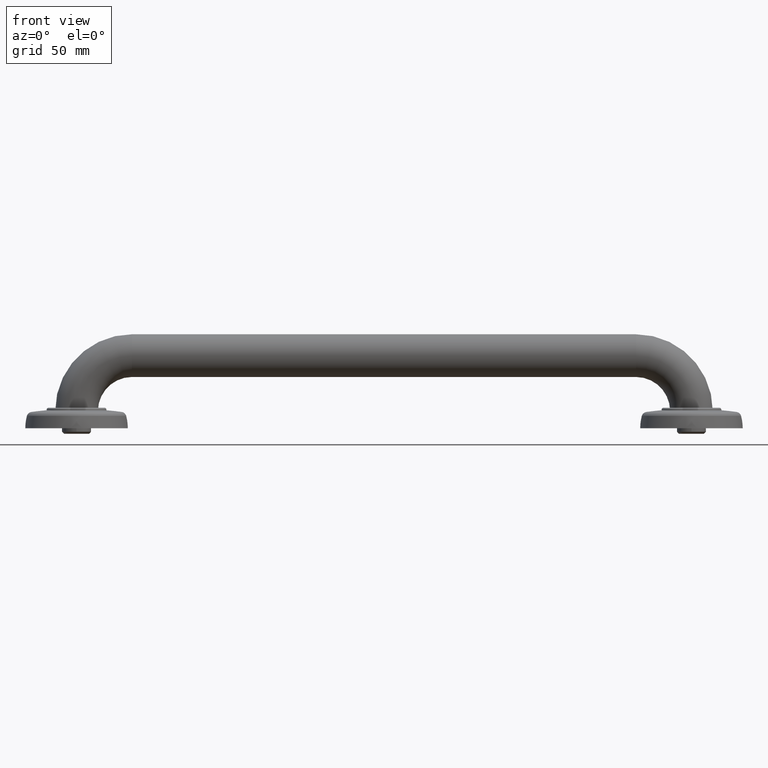
[diagram: clean part render]
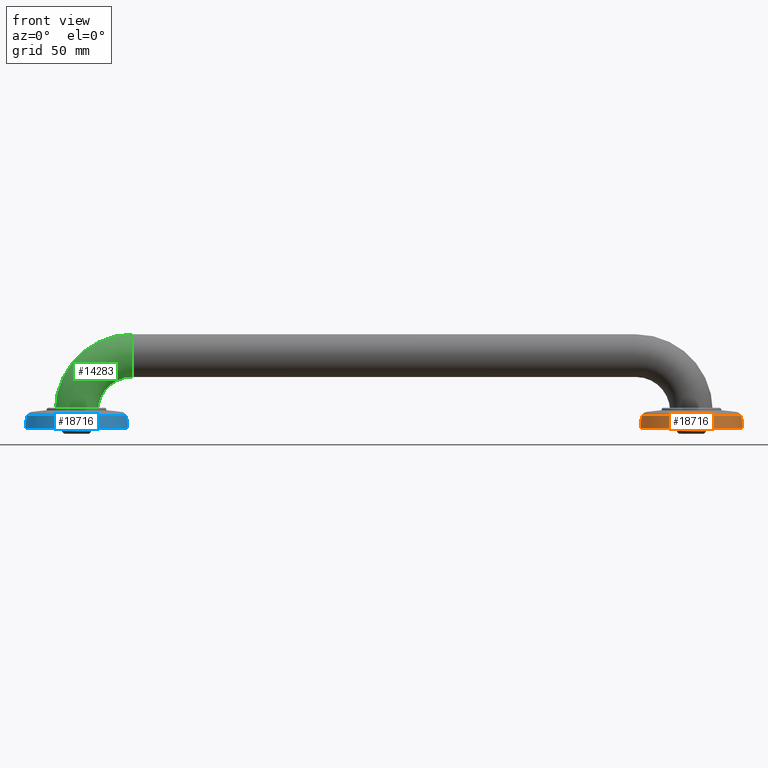
[diagram: same view with three faces highlighted in distinct colors, each labeled with its STEP entity id]
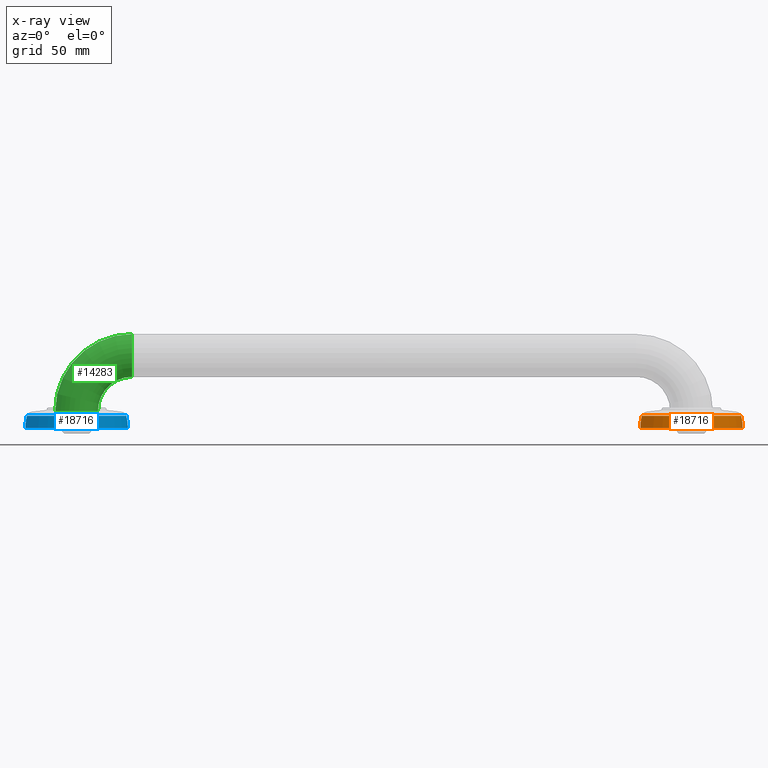
[diagram: x-ray of the same camera — body ghosted, the three highlighted faces saturated]
A machine part, front view with three faces highlighted in distinct colors.
The next image is the same camera in x-ray (body ghosted, the three faces saturated) — at least one of them is partly hidden behind the body in this view.
Their STEP definitions:

[orange] entity #18716 — the highlighted face is a freeform B-spline surface patch.
#17330=CARTESIAN_POINT('',(-8.3E-2,0.E0,0.E0));
#17331=DIRECTION('',(0.E0,0.E0,-1.E0));
#17332=DIRECTION('',(-1.E0,0.E0,0.E0));
#17333=AXIS2_PLACEMENT_3D('',#17330,#17331,#17332);
#17340=CARTESIAN_POINT('',(8.3E-2,0.E0,0.E0));
#17341=DIRECTION('',(0.E0,0.E0,1.E0));
#17342=DIRECTION('',(1.E0,0.E0,0.E0));
#17343=AXIS2_PLACEMENT_3D('',#17340,#17341,#17342);
#17385=CARTESIAN_POINT('',(0.E0,3.591472293824E-1,0.E0));
#17386=DIRECTION('',(0.E0,1.E0,0.E0));
#17387=DIRECTION('',(-1.E0,0.E0,0.E0));
#17388=AXIS2_PLACEMENT_3D('',#17385,#17386,#17387);
#17390=CARTESIAN_POINT('',(0.E0,0.E0,0.E0));
#17391=DIRECTION('',(0.E0,-1.E0,0.E0));
#17392=DIRECTION('',(1.E0,0.E0,0.E0));
#17393=AXIS2_PLACEMENT_3D('',#17390,#17391,#17392);
#18353=CARTESIAN_POINT('',(1.5E0,0.E0,0.E0));
#18354=CARTESIAN_POINT('',(-1.5E0,0.E0,0.E0));
#18355=VERTEX_POINT('',#18353);
#18356=VERTEX_POINT('',#18354);
#18369=CARTESIAN_POINT('',(-1.453730559821E0,3.591472293824E-1,0.E0));
#18370=CARTESIAN_POINT('',(1.453730559821E0,3.591472293824E-1,0.E0));
#18371=VERTEX_POINT('',#18369);
#18372=VERTEX_POINT('',#18370);
#18681=CARTESIAN_POINT('',(1.449006983134E0,3.661675363298E-1,
-9.116379219209E-2));
#18682=CARTESIAN_POINT('',(1.481567288477E0,2.442042063188E-1,
-9.321231296840E-2));
#18683=CARTESIAN_POINT('',(1.497667282328E0,1.189876420465E-1,
-9.422523872432E-2));
#18684=CARTESIAN_POINT('',(1.497021520017E0,-7.262130742064E-3,
-9.418461080341E-2));
#18685=CARTESIAN_POINT('',(1.505109052973E0,3.661675363298E-1,
8.005530727029E-1));
#18686=CARTESIAN_POINT('',(1.538930015128E0,2.442042063188E-1,
8.185421181621E-1));
#18687=CARTESIAN_POINT('',(1.555653362069E0,1.189876420465E-1,
8.274371060385E-1));
#18688=CARTESIAN_POINT('',(1.554982597392E0,-7.262130742064E-3,
8.270803327392E-1));
#18689=CARTESIAN_POINT('',(8.934799434674E-1,3.661675363298E-1,
1.451871920721E0));
#18690=CARTESIAN_POINT('',(9.135571274392E-1,2.442042063188E-1,
1.484496603423E0));
#18691=CARTESIAN_POINT('',(9.234846307316E-1,1.189876420465E-1,
1.500628429748E0));
#18692=CARTESIAN_POINT('',(9.230864437804E-1,-7.262130742064E-3,
1.499981390653E0));
#18693=CARTESIAN_POINT('',(0.E0,3.661675363298E-1,1.451871920721E0));
#18694=CARTESIAN_POINT('',(0.E0,2.442042063188E-1,1.484496603423E0));
#18695=CARTESIAN_POINT('',(0.E0,1.189876420465E-1,1.500628429748E0));
#18696=CARTESIAN_POINT('',(0.E0,-7.262130742064E-3,1.499981390653E0));
#18697=CARTESIAN_POINT('',(-8.934799434674E-1,3.661675363298E-1,
1.451871920721E0));
#18698=CARTESIAN_POINT('',(-9.135571274392E-1,2.442042063188E-1,
1.484496603423E0));
#18699=CARTESIAN_POINT('',(-9.234846307316E-1,1.189876420465E-1,
1.500628429748E0));
#18700=CARTESIAN_POINT('',(-9.230864437804E-1,-7.262130742064E-3,
1.499981390653E0));
#18701=CARTESIAN_POINT('',(-1.505109052973E0,3.661675363298E-1,
8.005530727029E-1));
#18702=CARTESIAN_POINT('',(-1.538930015128E0,2.442042063188E-1,
8.185421181621E-1));
#18703=CARTESIAN_POINT('',(-1.555653362069E0,1.189876420465E-1,
8.274371060385E-1));
#18704=CARTESIAN_POINT('',(-1.554982597392E0,-7.262130742064E-3,
8.270803327392E-1));
#18705=CARTESIAN_POINT('',(-1.449006983134E0,3.661675363298E-1,
-9.116379219209E-2));
#18706=CARTESIAN_POINT('',(-1.481567288477E0,2.442042063188E-1,
-9.321231296840E-2));
#18707=CARTESIAN_POINT('',(-1.497667282328E0,1.189876420465E-1,
-9.422523872432E-2));
#18708=CARTESIAN_POINT('',(-1.497021520017E0,-7.262130742064E-3,
-9.418461080341E-2));
#18709=(BOUNDED_SURFACE()B_SPLINE_SURFACE(3,3,((#18681,#18682,#18683,#18684),(
#18685,#18686,#18687,#18688),(#18689,#18690,#18691,#18692),(#18693,#18694,
#18695,#18696),(#18697,#18698,#18699,#18700),(#18701,#18702,#18703,#18704),(
#18705,#18706,#18707,#18708)),.UNSPECIFIED.,.F.,.F.,.F.)B_SPLINE_SURFACE_WITH_KNOTS((4,3,4),(4,4),(0.E0,1.E0,2.E0),(0.E0,1.E0),.UNSPECIFIED.)GEOMETRIC_REPRESENTATION_ITEM()RATIONAL_B_SPLINE_SURFACE(((1.192548551712E0,1.185500792755E0,
1.185500792755E0,1.192548551712E0),(9.417532904063E-1,9.361876887561E-1,
9.361876887561E-1,9.417532904063E-1),(9.417532904063E-1,9.361876887561E-1,
9.361876887561E-1,9.417532904063E-1),(1.192548551712E0,1.185500792755E0,
1.185500792755E0,1.192548551712E0),(9.417532904063E-1,9.361876887561E-1,
9.361876887561E-1,9.417532904063E-1),(9.417532904063E-1,9.361876887561E-1,
9.361876887561E-1,9.417532904063E-1),(1.192548551712E0,1.185500792755E0,
1.185500792755E0,1.192548551712E0)))REPRESENTATION_ITEM('')SURFACE());
#18710=ORIENTED_EDGE('',*,*,#18675,.T.);
#18711=ORIENTED_EDGE('',*,*,#18619,.F.);
#18712=ORIENTED_EDGE('',*,*,#18574,.T.);
#18713=ORIENTED_EDGE('',*,*,#18616,.T.);
#18714=EDGE_LOOP('',(#18710,#18711,#18712,#18713));
#18715=FACE_OUTER_BOUND('',#18714,.F.);
#18716=ADVANCED_FACE('',(#18715),#18709,.T.);
#17334=CIRCLE('',#17333,1.417E0);
#17344=CIRCLE('',#17343,1.417E0);
#17389=CIRCLE('',#17388,1.453730559821E0);
#17394=CIRCLE('',#17393,1.5E0);
#18574=EDGE_CURVE('',#18355,#18356,#17394,.T.);
#18616=EDGE_CURVE('',#18356,#18371,#17334,.T.);
#18619=EDGE_CURVE('',#18355,#18372,#17344,.T.);
#18675=EDGE_CURVE('',#18371,#18372,#17389,.T.);

[blue] entity #18716 — the highlighted face is a freeform B-spline surface patch.
#17330=CARTESIAN_POINT('',(-8.3E-2,0.E0,0.E0));
#17331=DIRECTION('',(0.E0,0.E0,-1.E0));
#17332=DIRECTION('',(-1.E0,0.E0,0.E0));
#17333=AXIS2_PLACEMENT_3D('',#17330,#17331,#17332);
#17340=CARTESIAN_POINT('',(8.3E-2,0.E0,0.E0));
#17341=DIRECTION('',(0.E0,0.E0,1.E0));
#17342=DIRECTION('',(1.E0,0.E0,0.E0));
#17343=AXIS2_PLACEMENT_3D('',#17340,#17341,#17342);
#17385=CARTESIAN_POINT('',(0.E0,3.591472293824E-1,0.E0));
#17386=DIRECTION('',(0.E0,1.E0,0.E0));
#17387=DIRECTION('',(-1.E0,0.E0,0.E0));
#17388=AXIS2_PLACEMENT_3D('',#17385,#17386,#17387);
#17390=CARTESIAN_POINT('',(0.E0,0.E0,0.E0));
#17391=DIRECTION('',(0.E0,-1.E0,0.E0));
#17392=DIRECTION('',(1.E0,0.E0,0.E0));
#17393=AXIS2_PLACEMENT_3D('',#17390,#17391,#17392);
#18353=CARTESIAN_POINT('',(1.5E0,0.E0,0.E0));
#18354=CARTESIAN_POINT('',(-1.5E0,0.E0,0.E0));
#18355=VERTEX_POINT('',#18353);
#18356=VERTEX_POINT('',#18354);
#18369=CARTESIAN_POINT('',(-1.453730559821E0,3.591472293824E-1,0.E0));
#18370=CARTESIAN_POINT('',(1.453730559821E0,3.591472293824E-1,0.E0));
#18371=VERTEX_POINT('',#18369);
#18372=VERTEX_POINT('',#18370);
#18681=CARTESIAN_POINT('',(1.449006983134E0,3.661675363298E-1,
-9.116379219209E-2));
#18682=CARTESIAN_POINT('',(1.481567288477E0,2.442042063188E-1,
-9.321231296840E-2));
#18683=CARTESIAN_POINT('',(1.497667282328E0,1.189876420465E-1,
-9.422523872432E-2));
#18684=CARTESIAN_POINT('',(1.497021520017E0,-7.262130742064E-3,
-9.418461080341E-2));
#18685=CARTESIAN_POINT('',(1.505109052973E0,3.661675363298E-1,
8.005530727029E-1));
#18686=CARTESIAN_POINT('',(1.538930015128E0,2.442042063188E-1,
8.185421181621E-1));
#18687=CARTESIAN_POINT('',(1.555653362069E0,1.189876420465E-1,
8.274371060385E-1));
#18688=CARTESIAN_POINT('',(1.554982597392E0,-7.262130742064E-3,
8.270803327392E-1));
#18689=CARTESIAN_POINT('',(8.934799434674E-1,3.661675363298E-1,
1.451871920721E0));
#18690=CARTESIAN_POINT('',(9.135571274392E-1,2.442042063188E-1,
1.484496603423E0));
#18691=CARTESIAN_POINT('',(9.234846307316E-1,1.189876420465E-1,
1.500628429748E0));
#18692=CARTESIAN_POINT('',(9.230864437804E-1,-7.262130742064E-3,
1.499981390653E0));
#18693=CARTESIAN_POINT('',(0.E0,3.661675363298E-1,1.451871920721E0));
#18694=CARTESIAN_POINT('',(0.E0,2.442042063188E-1,1.484496603423E0));
#18695=CARTESIAN_POINT('',(0.E0,1.189876420465E-1,1.500628429748E0));
#18696=CARTESIAN_POINT('',(0.E0,-7.262130742064E-3,1.499981390653E0));
#18697=CARTESIAN_POINT('',(-8.934799434674E-1,3.661675363298E-1,
1.451871920721E0));
#18698=CARTESIAN_POINT('',(-9.135571274392E-1,2.442042063188E-1,
1.484496603423E0));
#18699=CARTESIAN_POINT('',(-9.234846307316E-1,1.189876420465E-1,
1.500628429748E0));
#18700=CARTESIAN_POINT('',(-9.230864437804E-1,-7.262130742064E-3,
1.499981390653E0));
#18701=CARTESIAN_POINT('',(-1.505109052973E0,3.661675363298E-1,
8.005530727029E-1));
#18702=CARTESIAN_POINT('',(-1.538930015128E0,2.442042063188E-1,
8.185421181621E-1));
#18703=CARTESIAN_POINT('',(-1.555653362069E0,1.189876420465E-1,
8.274371060385E-1));
#18704=CARTESIAN_POINT('',(-1.554982597392E0,-7.262130742064E-3,
8.270803327392E-1));
#18705=CARTESIAN_POINT('',(-1.449006983134E0,3.661675363298E-1,
-9.116379219209E-2));
#18706=CARTESIAN_POINT('',(-1.481567288477E0,2.442042063188E-1,
-9.321231296840E-2));
#18707=CARTESIAN_POINT('',(-1.497667282328E0,1.189876420465E-1,
-9.422523872432E-2));
#18708=CARTESIAN_POINT('',(-1.497021520017E0,-7.262130742064E-3,
-9.418461080341E-2));
#18709=(BOUNDED_SURFACE()B_SPLINE_SURFACE(3,3,((#18681,#18682,#18683,#18684),(
#18685,#18686,#18687,#18688),(#18689,#18690,#18691,#18692),(#18693,#18694,
#18695,#18696),(#18697,#18698,#18699,#18700),(#18701,#18702,#18703,#18704),(
#18705,#18706,#18707,#18708)),.UNSPECIFIED.,.F.,.F.,.F.)B_SPLINE_SURFACE_WITH_KNOTS((4,3,4),(4,4),(0.E0,1.E0,2.E0),(0.E0,1.E0),.UNSPECIFIED.)GEOMETRIC_REPRESENTATION_ITEM()RATIONAL_B_SPLINE_SURFACE(((1.192548551712E0,1.185500792755E0,
1.185500792755E0,1.192548551712E0),(9.417532904063E-1,9.361876887561E-1,
9.361876887561E-1,9.417532904063E-1),(9.417532904063E-1,9.361876887561E-1,
9.361876887561E-1,9.417532904063E-1),(1.192548551712E0,1.185500792755E0,
1.185500792755E0,1.192548551712E0),(9.417532904063E-1,9.361876887561E-1,
9.361876887561E-1,9.417532904063E-1),(9.417532904063E-1,9.361876887561E-1,
9.361876887561E-1,9.417532904063E-1),(1.192548551712E0,1.185500792755E0,
1.185500792755E0,1.192548551712E0)))REPRESENTATION_ITEM('')SURFACE());
#18710=ORIENTED_EDGE('',*,*,#18675,.T.);
#18711=ORIENTED_EDGE('',*,*,#18619,.F.);
#18712=ORIENTED_EDGE('',*,*,#18574,.T.);
#18713=ORIENTED_EDGE('',*,*,#18616,.T.);
#18714=EDGE_LOOP('',(#18710,#18711,#18712,#18713));
#18715=FACE_OUTER_BOUND('',#18714,.F.);
#18716=ADVANCED_FACE('',(#18715),#18709,.T.);
#17334=CIRCLE('',#17333,1.417E0);
#17344=CIRCLE('',#17343,1.417E0);
#17389=CIRCLE('',#17388,1.453730559821E0);
#17394=CIRCLE('',#17393,1.5E0);
#18574=EDGE_CURVE('',#18355,#18356,#17394,.T.);
#18616=EDGE_CURVE('',#18356,#18371,#17334,.T.);
#18619=EDGE_CURVE('',#18355,#18372,#17344,.T.);
#18675=EDGE_CURVE('',#18371,#18372,#17389,.T.);

[green] entity #14283 — the highlighted toroidal blend (fillet) surface has major radius 41.275 mm and minor (blend) radius 15.875 mm.
#13995=CARTESIAN_POINT('',(-9.E0,0.E0,-1.625E0));
#13996=DIRECTION('',(0.E0,0.E0,1.E0));
#13997=DIRECTION('',(-1.E0,0.E0,0.E0));
#13998=AXIS2_PLACEMENT_3D('',#13995,#13996,#13997);
#14000=CARTESIAN_POINT('',(-7.375E0,0.E0,-1.625E0));
#14001=DIRECTION('',(0.E0,1.E0,0.E0));
#14002=DIRECTION('',(-1.E0,0.E0,0.E0));
#14003=AXIS2_PLACEMENT_3D('',#14000,#14001,#14002);
#14010=CARTESIAN_POINT('',(-7.375E0,0.E0,-1.625E0));
#14011=DIRECTION('',(0.E0,1.E0,0.E0));
#14012=DIRECTION('',(-1.E0,0.E0,0.E0));
#14013=AXIS2_PLACEMENT_3D('',#14010,#14011,#14012);
#14024=CARTESIAN_POINT('',(-7.375E0,0.E0,0.E0));
#14025=DIRECTION('',(1.E0,0.E0,0.E0));
#14026=DIRECTION('',(0.E0,0.E0,1.E0));
#14027=AXIS2_PLACEMENT_3D('',#14024,#14025,#14026);
#14183=CARTESIAN_POINT('',(-8.375E0,0.E0,-1.625E0));
#14184=CARTESIAN_POINT('',(-9.625E0,0.E0,-1.625E0));
#14185=VERTEX_POINT('',#14183);
#14186=VERTEX_POINT('',#14184);
#14191=CARTESIAN_POINT('',(-7.375E0,0.E0,-6.25E-1));
#14192=CARTESIAN_POINT('',(-7.375E0,0.E0,6.25E-1));
#14193=VERTEX_POINT('',#14191);
#14194=VERTEX_POINT('',#14192);
#14269=CARTESIAN_POINT('',(-7.375E0,0.E0,-1.625E0));
#14270=DIRECTION('',(0.E0,1.E0,0.E0));
#14271=DIRECTION('',(1.E0,0.E0,0.E0));
#14272=AXIS2_PLACEMENT_3D('',#14269,#14270,#14271);
#14273=TOROIDAL_SURFACE('',#14272,1.625E0,6.25E-1);
#14274=ORIENTED_EDGE('',*,*,#14263,.F.);
#14276=ORIENTED_EDGE('',*,*,#14275,.T.);
#14278=ORIENTED_EDGE('',*,*,#14277,.T.);
#14280=ORIENTED_EDGE('',*,*,#14279,.F.);
#14281=EDGE_LOOP('',(#14274,#14276,#14278,#14280));
#14282=FACE_OUTER_BOUND('',#14281,.F.);
#14283=ADVANCED_FACE('',(#14282),#14273,.T.);
#13999=CIRCLE('',#13998,6.25E-1);
#14004=CIRCLE('',#14003,2.25E0);
#14014=CIRCLE('',#14013,1.E0);
#14028=CIRCLE('',#14027,6.25E-1);
#14263=EDGE_CURVE('',#14186,#14185,#13999,.T.);
#14275=EDGE_CURVE('',#14186,#14194,#14004,.T.);
#14277=EDGE_CURVE('',#14194,#14193,#14028,.T.);
#14279=EDGE_CURVE('',#14185,#14193,#14014,.T.);